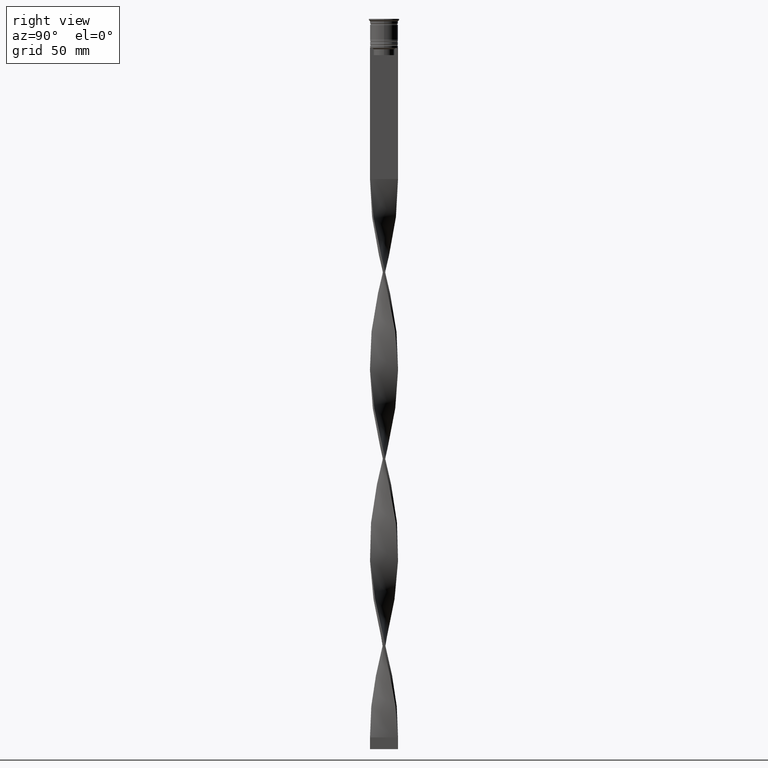
[diagram: clean part render]
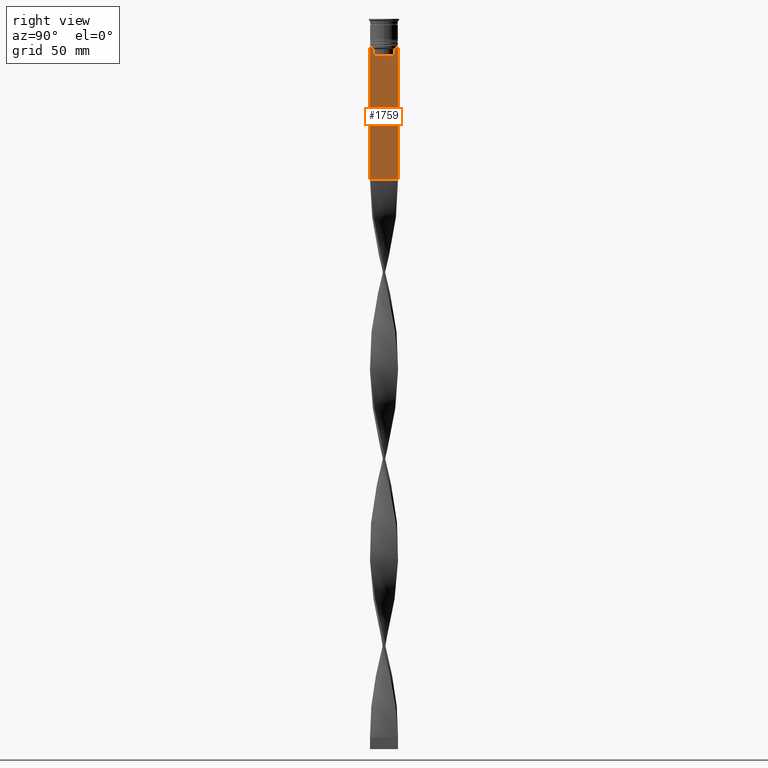
[diagram: same view with one face highlighted and labeled with its STEP entity id]
A machine part, right view. The second image highlights one B-rep face of the part: STEP entity #1759.
In plain terms, the highlighted planar face has unit normal (-1, 0, 0).
Its self-contained STEP definition (entity closure, byte-faithful):
#70 = LINE ( 'NONE', #1970, #2892 ) ;
#101 = CARTESIAN_POINT ( 'NONE',  ( 0.5000000000000002220, 4.371498598878878816, -13.00000000000000178 ) ) ;
#105 = CARTESIAN_POINT ( 'NONE',  ( 0.5000000000000002220, -6.000000000000000000, -12.50000000000000000 ) ) ;
#307 = EDGE_CURVE ( 'NONE', #1275, #3540, #2175, .T. ) ;
#363 = CARTESIAN_POINT ( 'NONE',  ( 0.5000000000000002220, -4.371498598878878816, 0.000000000000000000 ) ) ;
#402 = DIRECTION ( 'NONE',  ( 0.000000000000000000, -1.000000000000000000, 0.000000000000000000 ) ) ;
#426 = CARTESIAN_POINT ( 'NONE',  ( 0.5000000000000002220, -4.539195586926423331, -12.83338928448044314 ) ) ;
#447 = DIRECTION ( 'NONE',  ( 0.000000000000000000, 0.000000000000000000, -1.000000000000000000 ) ) ;
#517 = CARTESIAN_POINT ( 'NONE',  ( 0.5000000000000002220, 6.000000000000000888, -0.4584054212077061097 ) ) ;
#546 = VECTOR ( 'NONE', #4083, 1000.000000000000000 ) ;
#560 = VECTOR ( 'NONE', #1999, 1000.000000000000000 ) ;
#594 = ORIENTED_EDGE ( 'NONE', *, *, #3728, .T. ) ;
#601 = CARTESIAN_POINT ( 'NONE',  ( 0.5000000000000002220, 4.399999999999999467, -15.50000000000000000 ) ) ;
#634 = DIRECTION ( 'NONE',  ( -0.000000000000000000, -0.000000000000000000, 1.000000000000000000 ) ) ;
#638 = ORIENTED_EDGE ( 'NONE', *, *, #2799, .F. ) ;
#663 = CARTESIAN_POINT ( 'NONE',  ( 0.5000000000000002220, -6.000000000000000000, -12.50000000000000000 ) ) ;
#718 = CARTESIAN_POINT ( 'NONE',  ( 0.5000000000000002220, -4.706831372970962768, -12.66671687695981774 ) ) ;
#725 = CARTESIAN_POINT ( 'NONE',  ( 0.5000000000000002220, 4.874423042781576676, -12.50000000000000000 ) ) ;
#729 = ORIENTED_EDGE ( 'NONE', *, *, #841, .T. ) ;
#732 = DIRECTION ( 'NONE',  ( 0.000000000000000000, 0.000000000000000000, 1.000000000000000000 ) ) ;
#764 = VECTOR ( 'NONE', #3356, 1000.000000000000000 ) ;
#841 = EDGE_CURVE ( 'NONE', #939, #1275, #2901, .T. ) ;
#842 = VERTEX_POINT ( 'NONE', #3581 ) ;
#892 = CARTESIAN_POINT ( 'NONE',  ( 0.5000000000000002220, 6.000000000000000888, -12.50000000000000000 ) ) ;
#939 = VERTEX_POINT ( 'NONE', #3563 ) ;
#993 = VERTEX_POINT ( 'NONE', #1491 ) ;
#1018 = CARTESIAN_POINT ( 'NONE',  ( 0.5000000000000002220, 4.706831415367288329, -12.66671683478479160 ) ) ;
#1021 = VECTOR ( 'NONE', #402, 1000.000000000000000 ) ;
#1032 = VERTEX_POINT ( 'NONE', #1225 ) ;
#1044 = VERTEX_POINT ( 'NONE', #892 ) ;
#1107 = CARTESIAN_POINT ( 'NONE',  ( 0.5000000000000002220, -4.371498598878878816, -13.00000000000000178 ) ) ;
#1162 = DIRECTION ( 'NONE',  ( 0.000000000000000000, 1.000000000000000000, 0.000000000000000000 ) ) ;
#1205 = ORIENTED_EDGE ( 'NONE', *, *, #307, .T. ) ;
#1225 = CARTESIAN_POINT ( 'NONE',  ( 0.5000000000000002220, -4.371498598878878816, -15.50000000000000000 ) ) ;
#1231 = VECTOR ( 'NONE', #3989, 1000.000000000000000 ) ;
#1275 = VERTEX_POINT ( 'NONE', #663 ) ;
#1421 = VECTOR ( 'NONE', #2894, 1000.000000000000000 ) ;
#1453 = CARTESIAN_POINT ( 'NONE',  ( 0.5000000000000002220, -6.000000000000000000, -12.50000000000000000 ) ) ;
#1491 = CARTESIAN_POINT ( 'NONE',  ( 0.5000000000000002220, 5.878775382679627626, -12.50000000000000000 ) ) ;
#1493 = LINE ( 'NONE', #517, #3552 ) ;
#1598 = EDGE_CURVE ( 'NONE', #1032, #1939, #3207, .T. ) ;
#1620 = VECTOR ( 'NONE', #1162, 1000.000000000000000 ) ;
#1625 = B_SPLINE_CURVE_WITH_KNOTS ( 'NONE', 3,
 ( #3568, #426, #718, #2939 ),
 .UNSPECIFIED., .F., .F.,
 ( 4, 4 ),
 ( 0.02089901220910808308, 0.02161421017310286019 ),
 .UNSPECIFIED. ) ;
#1628 = ORIENTED_EDGE ( 'NONE', *, *, #1598, .T. ) ;
#1684 = CARTESIAN_POINT ( 'NONE',  ( 0.5000000000000002220, -4.874423042781576676, -12.50000000000000000 ) ) ;
#1759 = ADVANCED_FACE ( 'NONE', ( #3582 ), #3543, .F. ) ;
#1939 = VERTEX_POINT ( 'NONE', #1107 ) ;
#1970 = CARTESIAN_POINT ( 'NONE',  ( 0.5000000000000002220, 4.371498598878878816, 0.000000000000000000 ) ) ;
#1999 = DIRECTION ( 'NONE',  ( 0.000000000000000000, -1.000000000000000000, 0.000000000000000000 ) ) ;
#2049 = CARTESIAN_POINT ( 'NONE',  ( 0.5000000000000002220, -6.000000000000000000, -0.4584054212077061097 ) ) ;
#2079 = CARTESIAN_POINT ( 'NONE',  ( 0.5000000000000002220, -6.000000000000000000, -68.50000000000000000 ) ) ;
#2124 = VERTEX_POINT ( 'NONE', #3375 ) ;
#2167 = CARTESIAN_POINT ( 'NONE',  ( 0.5000000000000002220, 4.371498598878878816, -15.50000000000000000 ) ) ;
#2175 = LINE ( 'NONE', #3438, #546 ) ;
#2323 = DIRECTION ( 'NONE',  ( -1.000000000000000000, 0.000000000000000000, 0.000000000000000000 ) ) ;
#2383 = ORIENTED_EDGE ( 'NONE', *, *, #3609, .T. ) ;
#2466 = VERTEX_POINT ( 'NONE', #2957 ) ;
#2471 = ORIENTED_EDGE ( 'NONE', *, *, #3515, .T. ) ;
#2488 = CARTESIAN_POINT ( 'NONE',  ( 0.5000000000000002220, -5.999999999999999112, -68.50000000000000000 ) ) ;
#2508 = LINE ( 'NONE', #601, #1421 ) ;
#2528 = EDGE_CURVE ( 'NONE', #993, #2124, #3559, .T. ) ;
#2668 = CARTESIAN_POINT ( 'NONE',  ( 0.5000000000000002220, -6.000000000000000000, -12.50000000000000000 ) ) ;
#2799 = EDGE_CURVE ( 'NONE', #1044, #2466, #1493, .T. ) ;
#2809 = ORIENTED_EDGE ( 'NONE', *, *, #3001, .T. ) ;
#2819 = AXIS2_PLACEMENT_3D ( 'NONE', #2049, #2323, #732 ) ;
#2838 = VERTEX_POINT ( 'NONE', #2167 ) ;
#2883 = VECTOR ( 'NONE', #634, 1000.000000000000000 ) ;
#2892 = VECTOR ( 'NONE', #447, 1000.000000000000000 ) ;
#2894 = DIRECTION ( 'NONE',  ( 0.000000000000000000, -1.000000000000000000, 0.000000000000000000 ) ) ;
#2901 = LINE ( 'NONE', #2668, #1021 ) ;
#2939 = CARTESIAN_POINT ( 'NONE',  ( 0.5000000000000002220, -4.874423042781576676, -12.50000000000000000 ) ) ;
#2957 = CARTESIAN_POINT ( 'NONE',  ( 0.5000000000000002220, 6.000000000000000888, -68.50000000000000000 ) ) ;
#2996 = EDGE_CURVE ( 'NONE', #2838, #1032, #2508, .T. ) ;
#3001 = EDGE_CURVE ( 'NONE', #2124, #842, #3565, .T. ) ;
#3015 = VERTEX_POINT ( 'NONE', #1684 ) ;
#3040 = LINE ( 'NONE', #1453, #1231 ) ;
#3052 = DIRECTION ( 'NONE',  ( 0.000000000000000000, 0.000000000000000000, -1.000000000000000000 ) ) ;
#3088 = ORIENTED_EDGE ( 'NONE', *, *, #2528, .T. ) ;
#3207 = LINE ( 'NONE', #363, #2883 ) ;
#3356 = DIRECTION ( 'NONE',  ( 0.000000000000000000, -1.000000000000000000, 0.000000000000000000 ) ) ;
#3375 = CARTESIAN_POINT ( 'NONE',  ( 0.5000000000000002220, 4.874423042781576676, -12.50000000000000000 ) ) ;
#3384 = LINE ( 'NONE', #2079, #1620 ) ;
#3438 = CARTESIAN_POINT ( 'NONE',  ( 0.5000000000000002220, -6.000000000000000000, -0.4584054212077061097 ) ) ;
#3475 = ORIENTED_EDGE ( 'NONE', *, *, #2996, .T. ) ;
#3489 = EDGE_CURVE ( 'NONE', #842, #2838, #70, .T. ) ;
#3497 = EDGE_LOOP ( 'NONE', ( #3088, #2809, #4052, #3475, #1628, #2471, #594, #729, #1205, #3597, #638, #2383 ) ) ;
#3515 = EDGE_CURVE ( 'NONE', #1939, #3015, #1625, .T. ) ;
#3540 = VERTEX_POINT ( 'NONE', #2488 ) ;
#3543 = PLANE ( 'NONE',  #2819 ) ;
#3552 = VECTOR ( 'NONE', #3052, 1000.000000000000000 ) ;
#3559 = LINE ( 'NONE', #105, #560 ) ;
#3563 = CARTESIAN_POINT ( 'NONE',  ( 0.5000000000000002220, -5.878775382679627626, -12.50000000000000000 ) ) ;
#3565 = B_SPLINE_CURVE_WITH_KNOTS ( 'NONE', 3,
 ( #725, #1018, #3593, #101 ),
 .UNSPECIFIED., .F., .F.,
 ( 4, 4 ),
 ( 0.008336552452178421987, 0.009045730124312839626 ),
 .UNSPECIFIED. ) ;
#3568 = CARTESIAN_POINT ( 'NONE',  ( 0.5000000000000002220, -4.371498598878878816, -13.00000000000000178 ) ) ;
#3581 = CARTESIAN_POINT ( 'NONE',  ( 0.5000000000000002220, 4.371498598878878816, -13.00000000000000178 ) ) ;
#3582 = FACE_OUTER_BOUND ( 'NONE', #3497, .T. ) ;
#3593 = CARTESIAN_POINT ( 'NONE',  ( 0.5000000000000002220, 4.539195634199896467, -12.83338923751318816 ) ) ;
#3597 = ORIENTED_EDGE ( 'NONE', *, *, #4095, .T. ) ;
#3609 = EDGE_CURVE ( 'NONE', #1044, #993, #4033, .T. ) ;
#3719 = CARTESIAN_POINT ( 'NONE',  ( 0.5000000000000002220, -6.000000000000000000, -12.50000000000000000 ) ) ;
#3728 = EDGE_CURVE ( 'NONE', #3015, #939, #3040, .T. ) ;
#3989 = DIRECTION ( 'NONE',  ( 0.000000000000000000, -1.000000000000000000, 0.000000000000000000 ) ) ;
#4033 = LINE ( 'NONE', #3719, #764 ) ;
#4052 = ORIENTED_EDGE ( 'NONE', *, *, #3489, .T. ) ;
#4083 = DIRECTION ( 'NONE',  ( 0.000000000000000000, 0.000000000000000000, -1.000000000000000000 ) ) ;
#4095 = EDGE_CURVE ( 'NONE', #3540, #2466, #3384, .T. ) ;